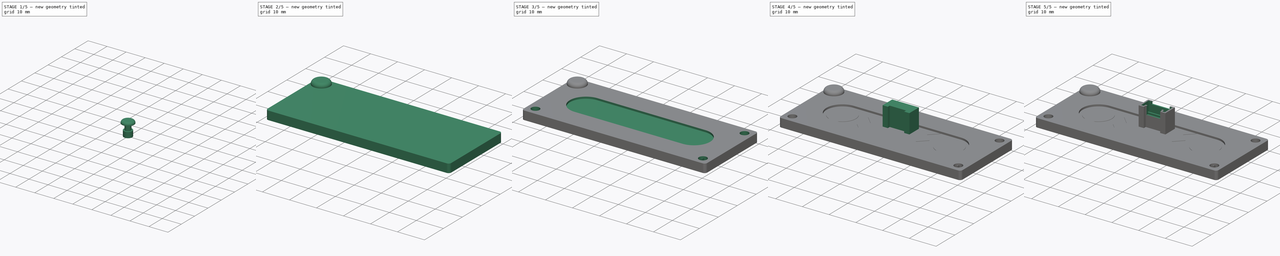
[diagram: build sequence overview — one tinted view per stage of 5, left to right]
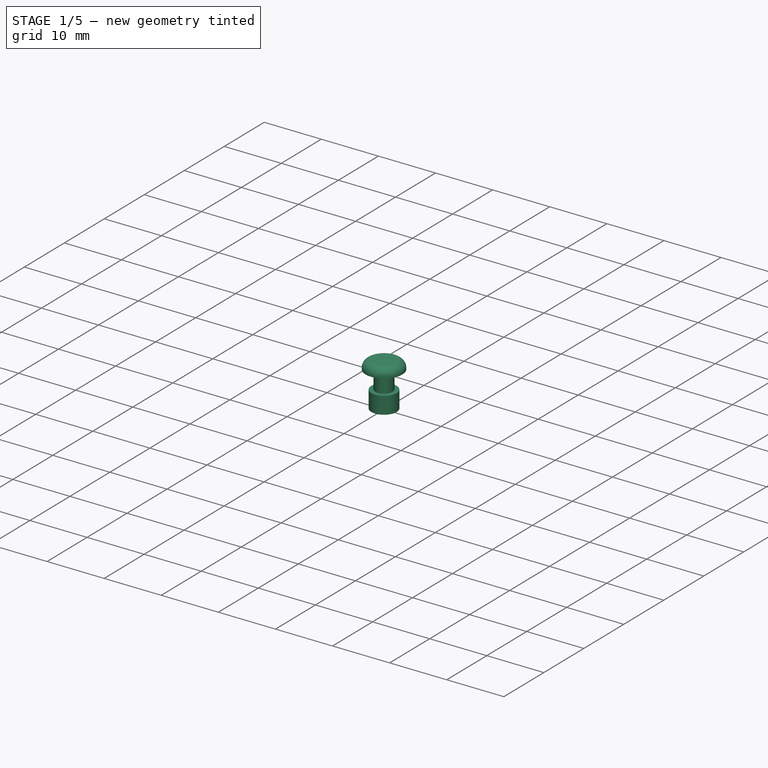
[diagram: stage 1 of 5 — iso view after this stage's code; geometry added in this stage tinted green]
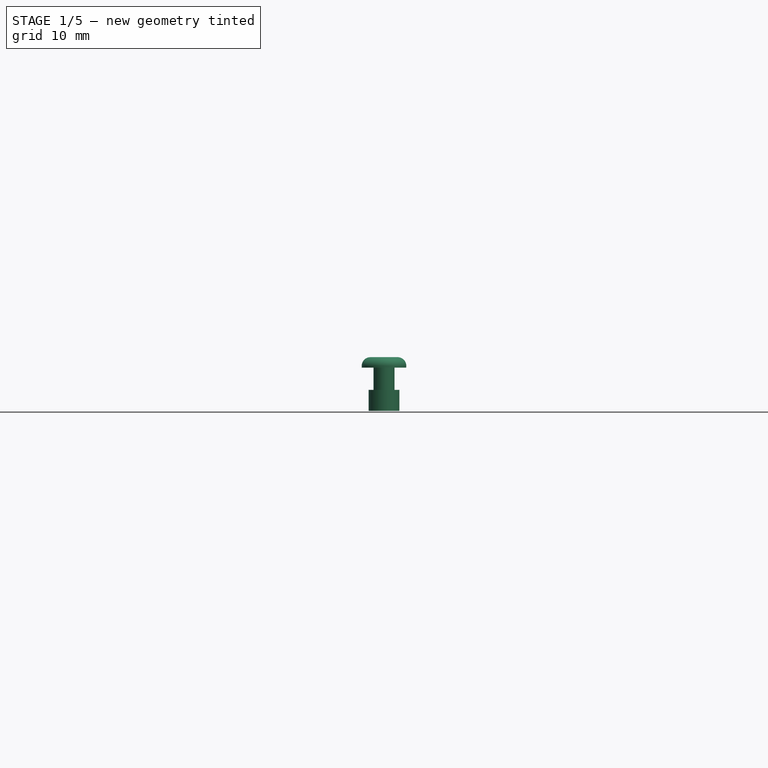
[diagram: stage 1 of 5 — front view after this stage's code; geometry added in this stage tinted green]
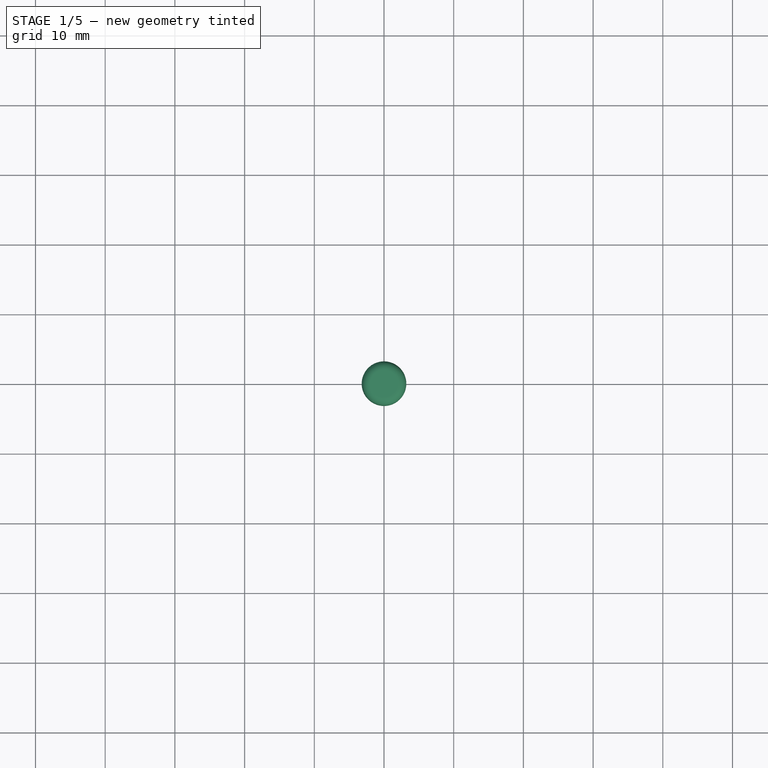
[diagram: stage 1 of 5 — top view after this stage's code; geometry added in this stage tinted green]
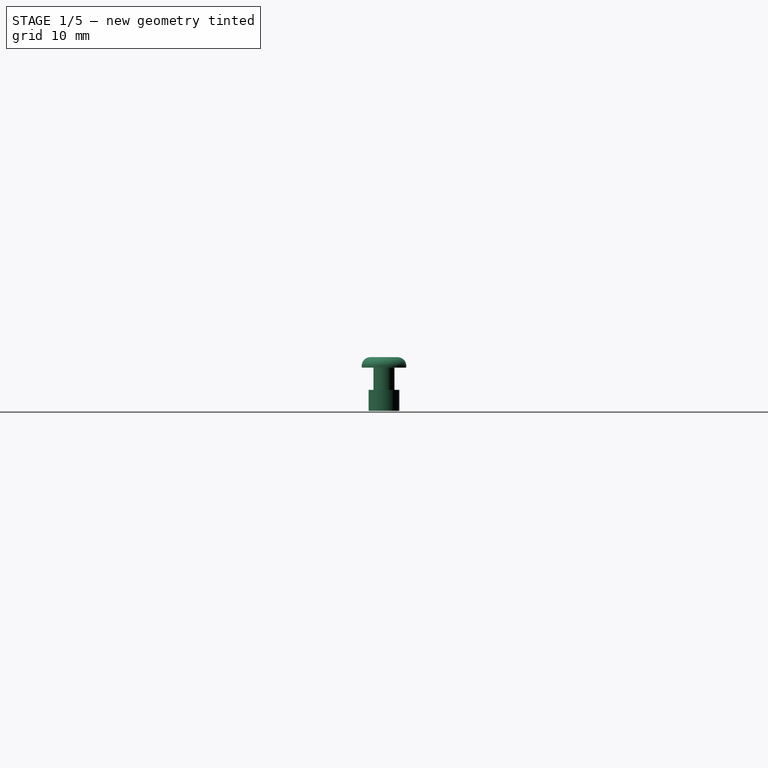
[diagram: stage 1 of 5 — right view after this stage's code; geometry added in this stage tinted green]
FCSTD DOCUMENT  (FreeCAD 0.19R24276 (Git))
Label: Grove_TouchSlideSens
License: All rights reserved
LicenseURL: http://en.wikipedia.org/wiki/All_rights_reserved
objects: Sketcher::SketchObject×17, PartDesign::Pad×10, PartDesign::Body×10, PartDesign::Pocket×7, PartDesign::ShapeBinder×3, PartDesign::FeatureBase×3, PartDesign::Fillet×1, App::Part×1
note: 69 computed .brp shape members not serialized (recipe doc carries the construction recipe); baked Part::Feature solids carry a one-line shape summary decoded from their .brp

FEATURE [PartDesign::Body] Body009  label="ClearCase"
  Group = -> [Sketch017,Pad010,Sketch018,Pocket006,Sketch019,Pocket007,Sketch020,Pocket008]
  Origin = -> Origin011
  Tip = -> Pocket008
FEATURE [Sketcher::SketchObject] Sketch021
  FullyConstrained = true
  MapMode = 5
  Support = -> [XY_Plane012]
  sketch-geometry (1):
    g0: Circle CenterX=0 CenterY=0 CenterZ=0 NormalX=0 NormalY=0 NormalZ=1 AngleXU=0 Radius=1.5
  constraints (2):
    c: Coincident(g0,g-1)
    c: Diameter(g0) = 3
FEATURE [PartDesign::Pad] Pad011
  Direction = (1,1,1)
  Length = 3.2
  Length2 = 100
  Midplane = true
  Profile = -> Sketch021
  Type = 0
FEATURE [Sketcher::SketchObject] Sketch022
  FullyConstrained = true
  MapMode = 5
  Placement = pos=(0,0,1.6) rot=(0,0,1;0rad)
  Support = -> [Pad011]
  sketch-geometry (1):
    g0: Circle CenterX=0 CenterY=0 CenterZ=0 NormalX=0 NormalY=0 NormalZ=1 AngleXU=0 Radius=3.2
  constraints (2):
    c: Coincident(g0,g-1)
    c: Diameter(g0) = 6.4
FEATURE [PartDesign::Pad] Pad012
  BaseFeature = -> Pad011
  Direction = (1,1,1)
  Length = 1.5
  Length2 = 100
  Profile = -> Sketch022
  Type = 0
FEATURE [PartDesign::Fillet] Fillet
  Base = -> Pad012 [Edge3]
  BaseFeature = -> Pad012
  Radius = 1.25
  SupportTransform = false
FEATURE [Sketcher::SketchObject] Sketch023
  FullyConstrained = true
  MapMode = 5
  Placement = pos=(0,0,-1.6) rot=(1,0,0;3.14159rad)
  Support = -> [Fillet]
  sketch-geometry (1):
    g0: Circle CenterX=0 CenterY=0 CenterZ=0 NormalX=0 NormalY=0 NormalZ=1 AngleXU=0 Radius=2.2
  constraints (2):
    c: Coincident(g0,g-1)
    c: Diameter(g0) = 4.4
FEATURE [PartDesign::Pad] Pad013
  BaseFeature = -> Fillet
  Direction = (1,1,1)
  Length = 3
  Length2 = 100
  Profile = -> Sketch023
  Type = 0
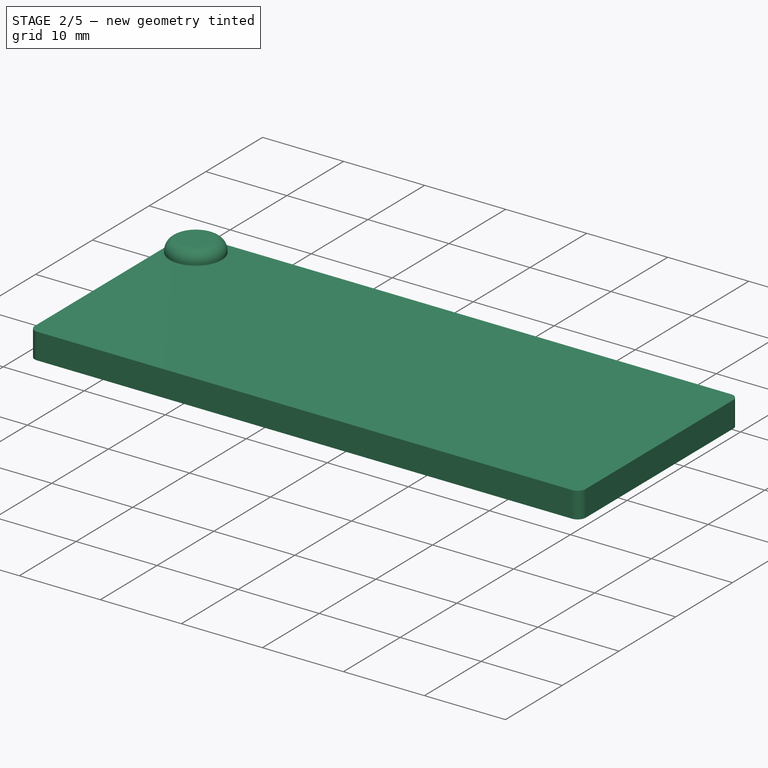
[diagram: stage 2 of 5 — iso view after this stage's code; geometry added in this stage tinted green]
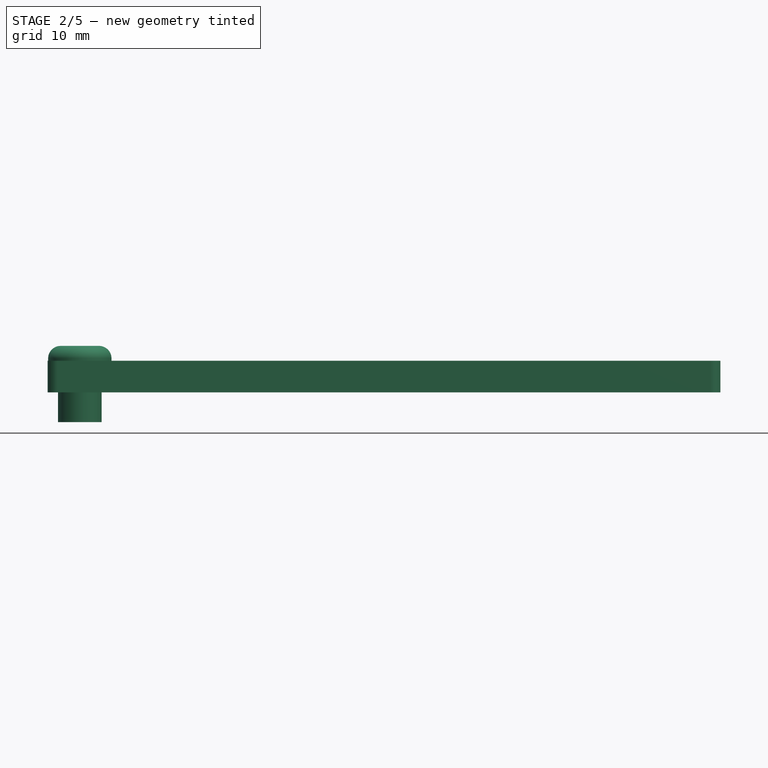
[diagram: stage 2 of 5 — front view after this stage's code; geometry added in this stage tinted green]
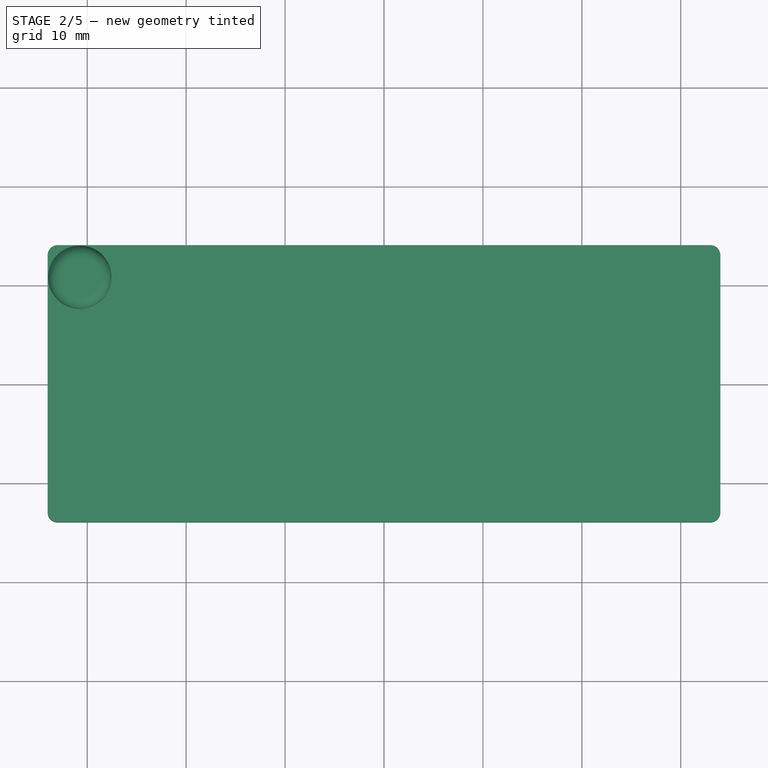
[diagram: stage 2 of 5 — top view after this stage's code; geometry added in this stage tinted green]
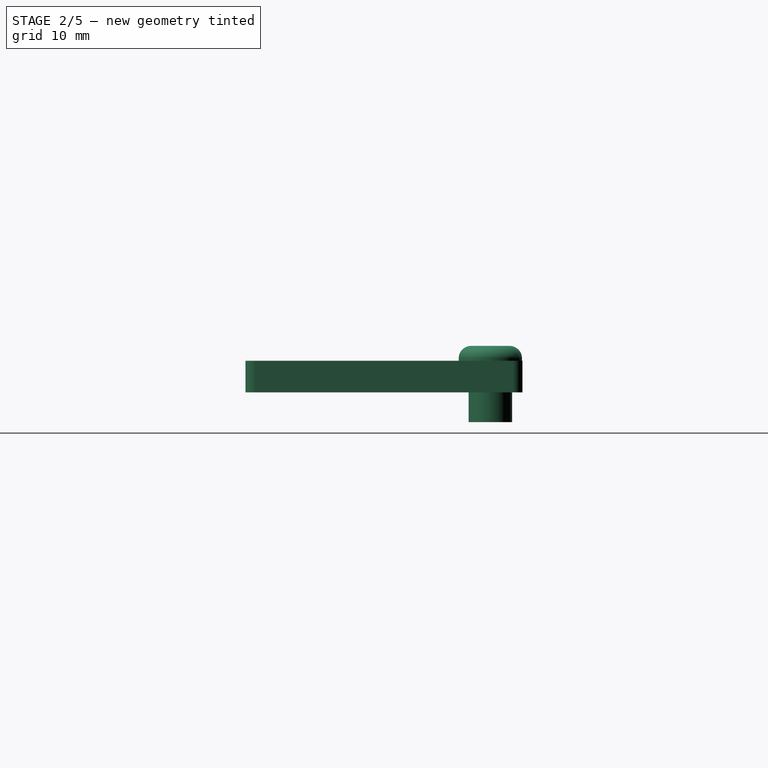
[diagram: stage 2 of 5 — right view after this stage's code; geometry added in this stage tinted green]
FEATURE [PartDesign::Body] Body  label="MainBoard"
  Group = -> [Sketch,Pad,Sketch016,Pocket]
  Origin = -> Origin001
  Tip = -> Pocket
FEATURE [Sketcher::SketchObject] Sketch017
  FullyConstrained = true
  MapMode = 5
  Support = -> [XY_Plane008]
  sketch-geometry (13):
    g0: LineSegment StartX=-33 StartY=14 StartZ=0 EndX=33 EndY=14 EndZ=0
    g1: LineSegment StartX=34 StartY=13 StartZ=0 EndX=34 EndY=-13 EndZ=0
    g2: LineSegment StartX=33 StartY=-14 StartZ=0 EndX=-33 EndY=-14 EndZ=0
    g3: LineSegment StartX=-34 StartY=-13 StartZ=0 EndX=-34 EndY=13 EndZ=0
    g4: LineSegment StartX=0 StartY=0 StartZ=0 EndX=0 EndY=14 EndZ=0
    g5: LineSegment StartX=0 StartY=0 StartZ=0 EndX=34 EndY=0 EndZ=0
    g6: ArcOfCircle CenterX=-33 CenterY=13 CenterZ=0 NormalX=0 NormalY=0 NormalZ=1 AngleXU=0 Radius=1 StartAngle=1.5708 EndAngle=3.14159
    g7: ArcOfCircle CenterX=33 CenterY=13 CenterZ=0 NormalX=0 NormalY=0 NormalZ=1 AngleXU=0 Radius=1 StartAngle=5.7653e-12 EndAngle=1.5708
    g8: ArcOfCircle CenterX=33 CenterY=-13 CenterZ=0 NormalX=0 NormalY=0 NormalZ=1 AngleXU=0 Radius=1 StartAngle=4.71239 EndAngle=6.28319
    g9: ArcOfCircle CenterX=-33 CenterY=-13 CenterZ=0 NormalX=0 NormalY=0 NormalZ=1 AngleXU=0 Radius=1 StartAngle=3.14159 EndAngle=4.71239
    g10: LineSegment StartX=-33 StartY=13 StartZ=0 EndX=33 EndY=13 EndZ=0
    g11: LineSegment StartX=33 StartY=13 StartZ=0 EndX=33 EndY=-13 EndZ=0
    g12: LineSegment StartX=-33 StartY=-13 StartZ=0 EndX=-33 EndY=13 EndZ=0
  constraints (30):
    c: Horizontal(g0)
    c: Horizontal(g2)
    c: Vertical(g1)
    c: Vertical(g3)
    c: Coincident(g4,g-1)
    c: PointOnObject(g4,g-2)
    c: Coincident(g5,g-1)
    c: PointOnObject(g5,g-1)
    c: Tangent(g3,g6) = 1.5708
    c: Tangent(g0,g6) = 1.5708
    c: Tangent(g0,g7) = 1.5708
    c: Tangent(g1,g7) = 1.5708
    c: Tangent(g1,g8) = 1.5708
    c: Tangent(g2,g8) = 1.5708
    c: Tangent(g2,g9) = 1.5708
    c: Tangent(g3,g9) = 1.5708
    c: Coincident(g10,g6)
    c: Coincident(g10,g7)
    c: Horizontal(g10)
    c: Coincident(g11,g7)
    c: Coincident(g11,g8)
    c: Vertical(g11)
    c: Coincident(g12,g9)
    c: Coincident(g12,g6)
    c: Vertical(g12)
    c: Radius(g6) = 1
    c: Symmetric(g0,g0,g4)
    c: Symmetric(g1,g1,g5)
    c: DistanceX(g3,g1) = 68
    c: DistanceY(g2,g0) = 28
FEATURE [PartDesign::Pad] Pad010
  Direction = (1,1,1)
  Length = 3.2
  Length2 = 100
  Midplane = true
  Profile = -> Sketch017
  Type = 0
FEATURE [PartDesign::Body] Body010  label="GroveSplitRivet"
  Group = -> [Sketch021,Pad011,Sketch022,Pad012,Fillet,Sketch023,Pad013]
  Origin = -> Origin012
  Placement = pos=(-30.75,10.75,0) rot=(0,0,1;0rad)
  Tip = -> Pad013
FEATURE [PartDesign::FeatureBase] Clone
  BaseFeature = -> Body010
  Placement = pos=(-30.75,10.75,0) rot=(0,0,1;0rad)
FEATURE [PartDesign::Body] Body011  label="GroveSplitRivet001"
  BaseFeature = -> Body010
  Group = -> [Clone]
  Origin = -> Origin013
  Placement = pos=(61.5,0,0) rot=(0,0,1;0rad)
  Tip = -> Clone
FEATURE [PartDesign::FeatureBase] Clone001
  BaseFeature = -> Body010
  Placement = pos=(-30.75,10.75,0) rot=(0,0,1;0rad)
FEATURE [PartDesign::Body] Body012  label="GroveSplitRivet002"
  BaseFeature = -> Body010
  Group = -> [Clone001]
  Origin = -> Origin014
  Placement = pos=(0,-21.5,0) rot=(0,0,1;0rad)
  Tip = -> Clone001
FEATURE [PartDesign::FeatureBase] Clone002
  BaseFeature = -> Body010
  Placement = pos=(-30.75,10.75,0) rot=(0,0,1;0rad)
FEATURE [PartDesign::Body] Body013  label="GroveSplitRivet003"
  BaseFeature = -> Body010
  Group = -> [Clone002]
  Origin = -> Origin015
  Placement = pos=(61.5,-21.5,0) rot=(0,0,1;0rad)
  Tip = -> Clone002
FEATURE [App::Part] Part  label="GroveSlideSens"
  Group = -> [Body,Body005,Body006,Body007,Body008,Body009,Body010,Body011,Body012,Body013]
  Origin = -> Origin
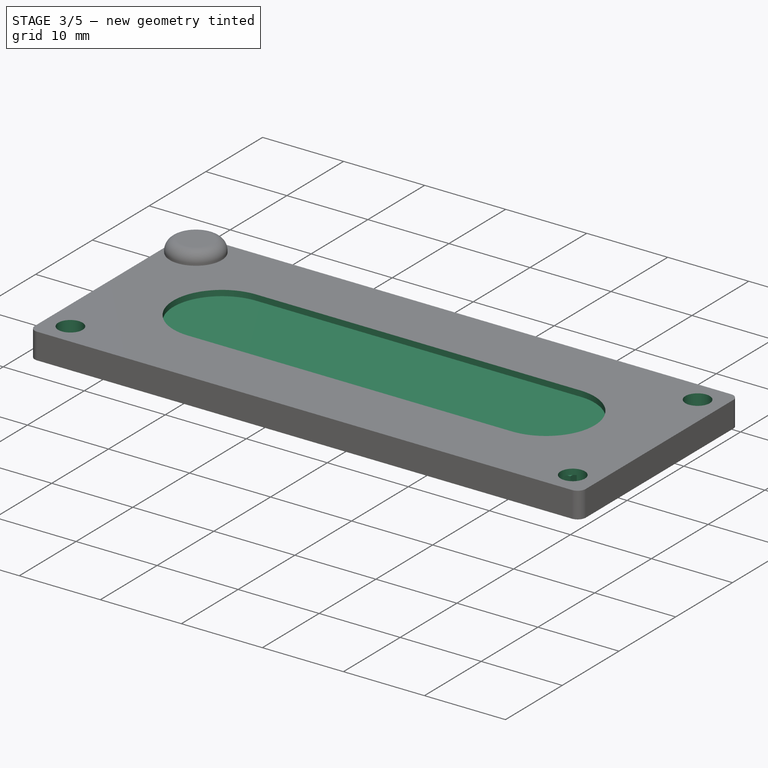
[diagram: stage 3 of 5 — iso view after this stage's code; geometry added in this stage tinted green]
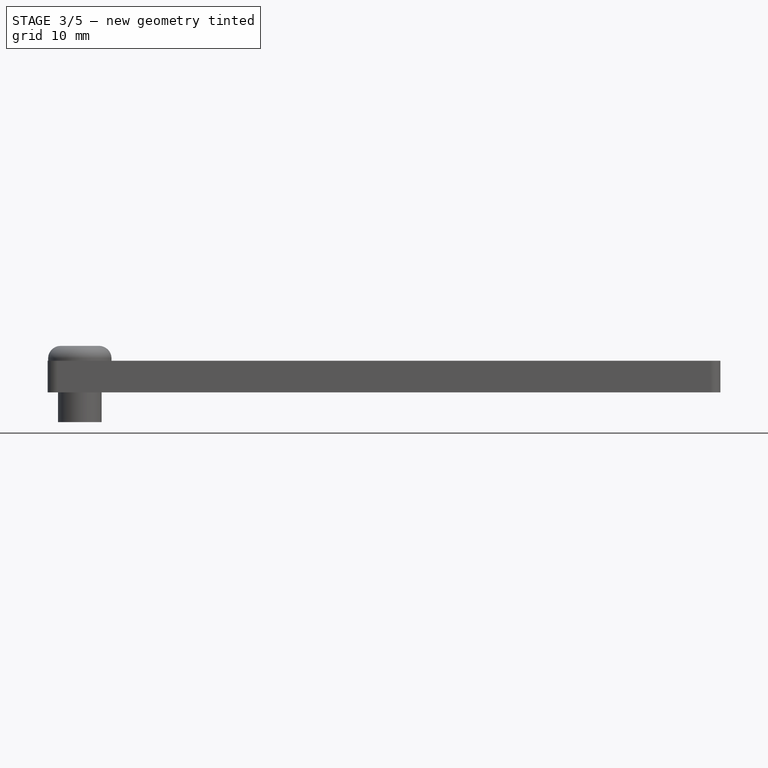
[diagram: stage 3 of 5 — front view after this stage's code; geometry added in this stage tinted green]
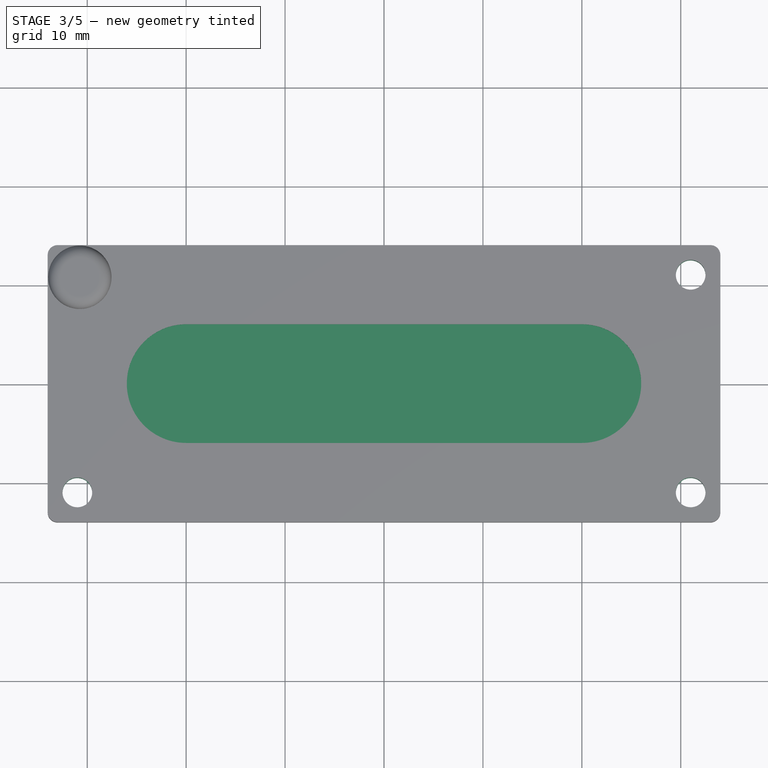
[diagram: stage 3 of 5 — top view after this stage's code; geometry added in this stage tinted green]
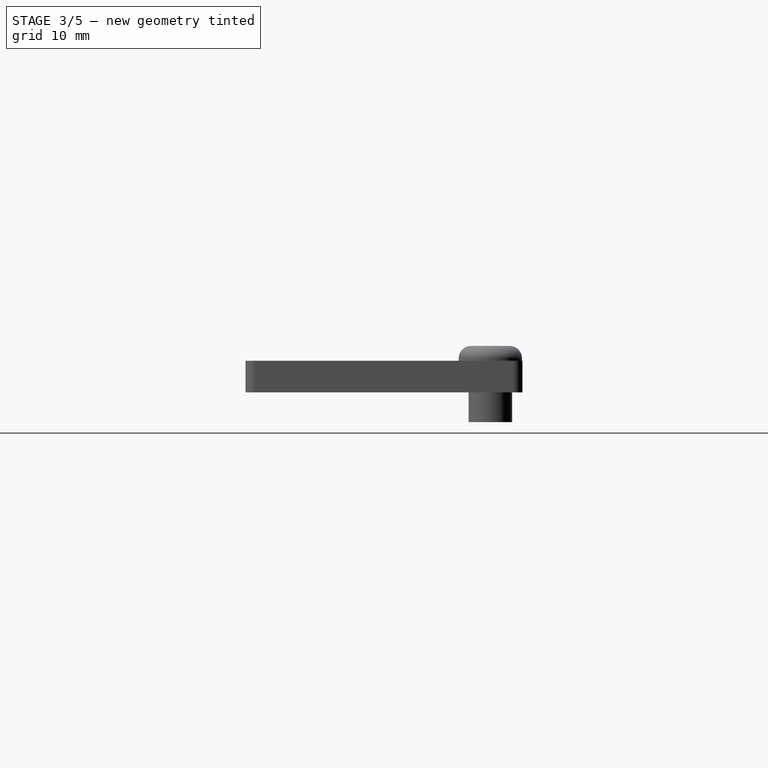
[diagram: stage 3 of 5 — right view after this stage's code; geometry added in this stage tinted green]
FEATURE [Sketcher::SketchObject] Sketch
  FullyConstrained = true
  MapMode = 5
  Support = -> [XY_Plane001]
  sketch-geometry (26):
    g0: LineSegment StartX=0 StartY=0 StartZ=0 EndX=0 EndY=10 EndZ=0
    g1: LineSegment StartX=-18 StartY=10 StartZ=0 EndX=18 EndY=10 EndZ=0
    g2: LineSegment StartX=30 StartY=10 StartZ=0 EndX=30 EndY=2 EndZ=0
    g3: LineSegment StartX=30 StartY=-2 StartZ=0 EndX=30 EndY=-10 EndZ=0
    g4: LineSegment StartX=22 StartY=10 StartZ=0 EndX=30 EndY=10 EndZ=0
    g5: LineSegment StartX=22 StartY=-10 StartZ=0 EndX=30 EndY=-10 EndZ=0
    g6: LineSegment StartX=18 StartY=-10 StartZ=0 EndX=-18 EndY=-10 EndZ=0
    g7: LineSegment StartX=-22 StartY=-10 StartZ=0 EndX=-30 EndY=-10 EndZ=0
    g8: LineSegment StartX=-30 StartY=-10 StartZ=0 EndX=-30 EndY=-2 EndZ=0
    g9: LineSegment StartX=-30 StartY=2 StartZ=0 EndX=-30 EndY=10 EndZ=0
    g10: LineSegment StartX=-30 StartY=10 StartZ=0 EndX=-22 EndY=10 EndZ=0
    g11: ArcOfCircle CenterX=-30 CenterY=0 CenterZ=0 NormalX=0 NormalY=0 NormalZ=1 AngleXU=0 Radius=2 StartAngle=4.71239 EndAngle=7.85398
    g12: ArcOfCircle CenterX=30 CenterY=0 CenterZ=0 NormalX=0 NormalY=0 NormalZ=1 AngleXU=0 Radius=2 StartAngle=1.5708 EndAngle=4.71239
    g13: LineSegment StartX=30 StartY=2 StartZ=0 EndX=30 EndY=-2 EndZ=0
    g14: LineSegment StartX=-30 StartY=2 StartZ=0 EndX=-30 EndY=-2 EndZ=0
    g15: LineSegment StartX=-22 StartY=10 StartZ=0 EndX=-18 EndY=10 EndZ=0
    g16: LineSegment StartX=-22 StartY=-10 StartZ=0 EndX=-18 EndY=-10 EndZ=0
    g17: LineSegment StartX=18 StartY=-10 StartZ=0 EndX=22 EndY=-10 EndZ=0
    g18: LineSegment StartX=18 StartY=10 StartZ=0 EndX=22 EndY=10 EndZ=0
    g19: ArcOfCircle CenterX=-20 CenterY=-10 CenterZ=0 NormalX=0 NormalY=0 NormalZ=1 AngleXU=0 Radius=2 StartAngle=3.14159 EndAngle=6.28319
    g20: ArcOfCircle CenterX=20 CenterY=-10 CenterZ=0 NormalX=0 NormalY=0 NormalZ=1 AngleXU=0 Radius=2 StartAngle=3.14159 EndAngle=6.28319
    g21: ArcOfCircle CenterX=-20 CenterY=10 CenterZ=0 NormalX=0 NormalY=0 NormalZ=1 AngleXU=0 Radius=2 StartAngle=3.4e-15 EndAngle=3.14159
    g22: LineSegment StartX=-20 StartY=-10 StartZ=0 EndX=-20 EndY=10 EndZ=0
    g23: LineSegment StartX=-30 StartY=2 StartZ=0 EndX=30 EndY=2 EndZ=0
    g24: ArcOfCircle CenterX=20 CenterY=10 CenterZ=0 NormalX=0 NormalY=0 NormalZ=1 AngleXU=0 Radius=2 StartAngle=6e-16 EndAngle=3.14159
    g25: LineSegment StartX=20 StartY=-10 StartZ=0 EndX=20 EndY=10 EndZ=0
  constraints (75):
    c: Coincident(g0,g-1)
    c: PointOnObject(g0,g-2)
    c: Horizontal(g1)
    c: Vertical(g2)
    c: Vertical(g3)
    c: Horizontal(g4)
    c: Coincident(g5,g3)
    c: Horizontal(g6)
    c: Horizontal(g7)
    c: Coincident(g8,g7)
    c: Vertical(g8)
    c: Coincident(g10,g9)
    c: Horizontal(g10)
    c: Horizontal(g5)
    c: Vertical(g9)
    c: PointOnObject(g11,g-1)
    c: Coincident(g11,g9)
    c: Coincident(g11,g8)
    c: Perpendicular(g11,g9)
    c: Perpendicular(g12,g2)
    c: Coincident(g14,g9)
    c: Coincident(g14,g8)
    c: Vertical(g14)
    c: Coincident(g15,g10)
    c: Coincident(g15,g1)
    c: Coincident(g16,g7)
    c: Coincident(g16,g6)
    c: Coincident(g17,g6)
    c: Coincident(g17,g5)
    c: Horizontal(g17)
    c: Coincident(g18,g1)
    c: Coincident(g18,g4)
    c: Horizontal(g18)
    c: Coincident(g2,g4)
    c: Equal(g15,g18)
    c: Horizontal(g15)
    c: Horizontal(g16)
    c: Equal(g16,g17)
    c: Equal(g17,g18)
    c: Equal(g14,g13)
    c: Equal(g1,g6)
    c: Symmetric(g1,g1,g0)
    c: Coincident(g13,g2)
    c: Coincident(g12,g2)
    c: Coincident(g3,g12)
    c: Vertical(g13)
    c: Perpendicular(g12,g3)
    c: PointOnObject(g19,g16)
    c: Coincident(g19,g7)
    c: Coincident(g19,g6)
    c: PointOnObject(g20,g17)
    c: Coincident(g20,g6)
    c: Coincident(g20,g5)
    c: PointOnObject(g21,g15)
    c: Coincident(g21,g10)
    c: Coincident(g21,g1)
    c: Equal(g3,g2)
    c: PointOnObject(g12,g-1)
    c: Coincident(g22,g19)
    c: Coincident(g22,g21)
    c: Coincident(g23,g9)
    c: Coincident(g23,g2)
    c: Horizontal(g23)
    c: Radius(g11) = 2
    c: PointOnObject(g24,g18)
    c: Coincident(g24,g1)
    c: Coincident(g24,g4)
    c: Coincident(g25,g20)
    c: Coincident(g25,g24)
    c: Vertical(g22)
    c: Equal(g10,g4)
    c: Radius(g21) = 2
    c: DistanceX(g7,g19) = 10
    c: DistanceX(g9,g2) = 60
    c: DistanceY(g7,g9) = 20
FEATURE [PartDesign::Pad] Pad
  Direction = (1,1,1)
  Length = 1.6
  Length2 = 100
  Midplane = true
  Profile = -> Sketch
  Type = 0
FEATURE [PartDesign::Body] Body008  label="ButtonSlider"
  Group = -> [CopyPad004,Sketch015,Pad009]
  Origin = -> Origin010
  Tip = -> Pad009
FEATURE [Sketcher::SketchObject] Sketch016
  FullyConstrained = true
  MapMode = 5
  Support = -> [XY_Plane008]
  sketch-geometry (8):
    g0: Circle CenterX=-20 CenterY=10 CenterZ=0 NormalX=0 NormalY=0 NormalZ=1 AngleXU=0 Radius=1.15
    g1: Circle CenterX=-20 CenterY=-10 CenterZ=0 NormalX=0 NormalY=0 NormalZ=1 AngleXU=0 Radius=1.15
    g2: Circle CenterX=20 CenterY=10 CenterZ=0 NormalX=0 NormalY=0 NormalZ=1 AngleXU=0 Radius=1.15
    g3: Circle CenterX=20 CenterY=-10 CenterZ=0 NormalX=0 NormalY=0 NormalZ=1 AngleXU=0 Radius=1.15
    g4: LineSegment StartX=0 StartY=0 StartZ=0 EndX=20 EndY=0 EndZ=0
    g5: LineSegment StartX=20 StartY=10 StartZ=0 EndX=20 EndY=-10 EndZ=0
    g6: LineSegment StartX=0 StartY=0 StartZ=0 EndX=-20 EndY=0 EndZ=0
    g7: LineSegment StartX=-20 StartY=10 StartZ=0 EndX=-20 EndY=-10 EndZ=0
  constraints (20):
    c: Coincident(g4,g-1)
    c: PointOnObject(g4,g-1)
    c: Coincident(g5,g2)
    c: Coincident(g5,g3)
    c: Vertical(g5)
    c: Coincident(g6,g-1)
    c: PointOnObject(g6,g-1)
    c: Coincident(g7,g0)
    c: Coincident(g7,g1)
    c: Vertical(g7)
    c: Symmetric(g0,g1,g6)
    c: Symmetric(g2,g3,g4)
    c: Equal(g7,g5)
    c: Equal(g4,g6)
    c: Distance(g5) = 20
    c: Distance(g6) = 20
    c: Equal(g0,g2)
    c: Equal(g2,g3)
    c: Equal(g3,g1)
    c: Diameter(g0) = 2.3
FEATURE [PartDesign::Pocket] Pocket
  BaseFeature = -> Pad
  Length = 5
  Length2 = 100
  Midplane = true
  Profile = -> Sketch016
  Type = 1
FEATURE [Sketcher::SketchObject] Sketch018
  FullyConstrained = true
  MapMode = 5
  Support = -> [XY_Plane008]
  sketch-geometry (27):
    g0: LineSegment StartX=-30.5 StartY=1.5 StartZ=0 EndX=-30.5 EndY=10.5 EndZ=0
    g1: LineSegment StartX=-30.5 StartY=10.5 StartZ=0 EndX=-22.25 EndY=10.5 EndZ=0
    g2: LineSegment StartX=-17.75 StartY=10.5 StartZ=0 EndX=17.75 EndY=10.5 EndZ=0
    g3: LineSegment StartX=22.25 StartY=10.5 StartZ=0 EndX=30.5 EndY=10.5 EndZ=0
    g4: LineSegment StartX=30.5 StartY=10.5 StartZ=0 EndX=30.5 EndY=1.5 EndZ=0
    g5: LineSegment StartX=30.5 StartY=-1.5 StartZ=0 EndX=30.5 EndY=-10.5 EndZ=0
    g6: LineSegment StartX=30.5 StartY=-10.5 StartZ=0 EndX=22.25 EndY=-10.5 EndZ=0
    g7: LineSegment StartX=17.75 StartY=-10.5 StartZ=0 EndX=-17.75 EndY=-10.5 EndZ=0
    g8: LineSegment StartX=-22.25 StartY=-10.5 StartZ=0 EndX=-30.5 EndY=-10.5 EndZ=0
    g9: LineSegment StartX=-30.5 StartY=-10.5 StartZ=0 EndX=-30.5 EndY=-1.5 EndZ=0
    g10: LineSegment StartX=-22.25 StartY=10.5 StartZ=0 EndX=-17.75 EndY=10.5 EndZ=0
    g11: LineSegment StartX=17.75 StartY=10.5 StartZ=0 EndX=22.25 EndY=10.5 EndZ=0
    g12: LineSegment StartX=30.5 StartY=1.5 StartZ=0 EndX=30.5 EndY=-1.5 EndZ=0
    g13: LineSegment StartX=17.75 StartY=-10.5 StartZ=0 EndX=22.25 EndY=-10.5 EndZ=0
    g14: LineSegment StartX=-22.25 StartY=-10.5 StartZ=0 EndX=-17.75 EndY=-10.5 EndZ=0
    g15: LineSegment StartX=-22.25 StartY=-10.5 StartZ=0 EndX=-22.25 EndY=10.5 EndZ=0
    g16: LineSegment StartX=22.25 StartY=10.5 StartZ=0 EndX=22.25 EndY=-10.5 EndZ=0
    g17: LineSegment StartX=30.5 StartY=1.5 StartZ=0 EndX=-30.5 EndY=1.5 EndZ=0
    g18: LineSegment StartX=-30.5 StartY=-1.5 StartZ=0 EndX=-30.5 EndY=1.5 EndZ=0
    g19: LineSegment StartX=-30.5 StartY=-1.5 StartZ=0 EndX=30.5 EndY=-1.5 EndZ=0
    g20: LineSegment StartX=0 StartY=0 StartZ=0 EndX=0 EndY=10.5 EndZ=0
    g21: ArcOfCircle CenterX=-30.5 CenterY=0 CenterZ=0 NormalX=0 NormalY=0 NormalZ=1 AngleXU=0 Radius=1.5 StartAngle=4.71239 EndAngle=7.85398
    g22: ArcOfCircle CenterX=30.5 CenterY=1e-16 CenterZ=0 NormalX=0 NormalY=0 NormalZ=1 AngleXU=0 Radius=1.5 StartAngle=1.5708 EndAngle=4.71239
    g23: ArcOfCircle CenterX=-20 CenterY=10.5 CenterZ=0 NormalX=0 NormalY=0 NormalZ=1 AngleXU=0 Radius=2.25 StartAngle=1.8e-15 EndAngle=3.14159
    g24: ArcOfCircle CenterX=20 CenterY=10.5 CenterZ=0 NormalX=0 NormalY=0 NormalZ=1 AngleXU=0 Radius=2.25 StartAngle=8e-16 EndAngle=3.14159
    g25: ArcOfCircle CenterX=-20 CenterY=-10.5 CenterZ=0 NormalX=0 NormalY=0 NormalZ=1 AngleXU=0 Radius=2.25 StartAngle=3.14159 EndAngle=6.28319
    g26: ArcOfCircle CenterX=20 CenterY=-10.5 CenterZ=0 NormalX=0 NormalY=0 NormalZ=1 AngleXU=0 Radius=2.25 StartAngle=3.14159 EndAngle=6.28319
  constraints (76):
    c: Vertical(g0)
    c: Coincident(g1,g0)
    c: Horizontal(g1)
    c: Horizontal(g2)
    c: Horizontal(g3)
    c: Coincident(g4,g3)
    c: Vertical(g4)
    c: Coincident(g6,g5)
    c: Horizontal(g6)
    c: Horizontal(g7)
    c: Horizontal(g8)
    c: Coincident(g9,g8)
    c: Vertical(g9)
    c: Vertical(g5)
    c: Coincident(g10,g1)
    c: Coincident(g10,g2)
    c: Coincident(g11,g2)
    c: Coincident(g11,g3)
    c: Horizontal(g11)
    c: Coincident(g12,g4)
    c: Coincident(g12,g5)
    c: Coincident(g13,g7)
    c: Coincident(g13,g6)
    c: Horizontal(g13)
    c: Coincident(g14,g8)
    c: Coincident(g14,g7)
    c: Horizontal(g14)
    c: Coincident(g15,g1)
    c: Vertical(g15)
    c: Coincident(g16,g3)
    c: Coincident(g16,g6)
    c: Coincident(g17,g4)
    c: Coincident(g17,g0)
    c: Horizontal(g17)
    c: Coincident(g18,g9)
    c: Coincident(g18,g0)
    c: Coincident(g19,g9)
    c: Coincident(g19,g5)
    c: Horizontal(g19)
    c: Vertical(g18)
    c: Coincident(g20,g-1)
    c: PointOnObject(g20,g-2)
    c: Vertical(g12)
    c: Horizontal(g10)
    c: Equal(g10,g11)
    c: Vertical(g16)
    c: Equal(g14,g13)
    c: Equal(g7,g2)
    c: Equal(g0,g9)
    c: Equal(g1,g3)
    c: Symmetric(g2,g2,g20)
    c: Coincident(g8,g15)
    c: PointOnObject(g21,g18)
    c: Coincident(g21,g0)
    c: Coincident(g21,g9)
    c: PointOnObject(g21,g-1)
    c: PointOnObject(g22,g12)
    c: Coincident(g22,g4)
    c: Coincident(g22,g5)
    c: Radius(g21) = 1.5
    c: PointOnObject(g23,g10)
    c: Coincident(g23,g1)
    c: Coincident(g23,g2)
    c: PointOnObject(g24,g11)
    c: Coincident(g24,g2)
    c: Coincident(g24,g3)
    c: Diameter(g23) = 4.5
    c: DistanceX(g23,g-1) = 20
    c: DistanceY(g8,g0) = 21
    c: DistanceX(g8,g5) = 61
    c: PointOnObject(g25,g14)
    c: Coincident(g25,g8)
    c: Coincident(g25,g7)
    c: PointOnObject(g26,g13)
    c: Coincident(g26,g7)
    c: Coincident(g26,g6)
FEATURE [PartDesign::Pocket] Pocket006
  BaseFeature = -> Pad010
  Length = 1.8
  Length2 = 100
  Midplane = true
  Profile = -> Sketch018
  Type = 0
FEATURE [Sketcher::SketchObject] Sketch019
  FullyConstrained = true
  MapMode = 5
  Support = -> [XY_Plane008]
  sketch-geometry (6):
    g0: ArcOfCircle CenterX=-20 CenterY=3e-16 CenterZ=0 NormalX=0 NormalY=0 NormalZ=1 AngleXU=0 Radius=6 StartAngle=1.5708 EndAngle=4.71239
    g1: ArcOfCircle CenterX=20 CenterY=0 CenterZ=0 NormalX=0 NormalY=0 NormalZ=1 AngleXU=0 Radius=6 StartAngle=4.71239 EndAngle=7.85398
    g2: LineSegment StartX=-20 StartY=-6 StartZ=0 EndX=20 EndY=-6 EndZ=0
    g3: LineSegment StartX=-20 StartY=6 StartZ=0 EndX=20 EndY=6 EndZ=0
    g4: LineSegment StartX=0 StartY=0 StartZ=0 EndX=20 EndY=0 EndZ=0
    g5: LineSegment StartX=0 StartY=0 StartZ=0 EndX=0 EndY=6 EndZ=0
  constraints (14):
    c: Tangent(g0,g3) = 1.5708
    c: Tangent(g0,g2) = -1.5708
    c: Tangent(g2,g1) = -1.5708
    c: Tangent(g3,g1) = 1.5708
    c: Horizontal(g2)
    c: Equal(g0,g1)
    c: Coincident(g4,g-1)
    c: PointOnObject(g4,g-1)
    c: Coincident(g5,g-1)
    c: PointOnObject(g5,g-2)
    c: Symmetric(g0,g1,g5)
    c: Coincident(g1,g4)
    c: Diameter(g1) = 12
    c: DistanceX(g0,g1) = 40
FEATURE [PartDesign::Pocket] Pocket007
  BaseFeature = -> Pocket006
  Length = 5
  Length2 = 100
  Profile = -> Sketch019
  Reversed = true
  Type = 0
FEATURE [Sketcher::SketchObject] Sketch020
  FullyConstrained = true
  MapMode = 5
  Support = -> [XY_Plane008]
  sketch-geometry (10):
    g0: LineSegment StartX=-31 StartY=11 StartZ=0 EndX=31 EndY=11 EndZ=0
    g1: LineSegment StartX=31 StartY=11 StartZ=0 EndX=31 EndY=-11 EndZ=0
    g2: LineSegment StartX=31 StartY=-11 StartZ=0 EndX=-31 EndY=-11 EndZ=0
    g3: LineSegment StartX=-31 StartY=-11 StartZ=0 EndX=-31 EndY=11 EndZ=0
    g4: LineSegment StartX=0 StartY=0 StartZ=0 EndX=0 EndY=11 EndZ=0
    g5: LineSegment StartX=0 StartY=0 StartZ=0 EndX=31 EndY=0 EndZ=0
    g6: Circle CenterX=-31 CenterY=11 CenterZ=0 NormalX=0 NormalY=0 NormalZ=1 AngleXU=0 Radius=1.5
    g7: Circle CenterX=31 CenterY=11 CenterZ=0 NormalX=0 NormalY=0 NormalZ=1 AngleXU=0 Radius=1.5
    g8: Circle CenterX=31 CenterY=-11 CenterZ=0 NormalX=0 NormalY=0 NormalZ=1 AngleXU=0 Radius=1.5
    g9: Circle CenterX=-31 CenterY=-11 CenterZ=0 NormalX=0 NormalY=0 NormalZ=1 AngleXU=0 Radius=1.5
  constraints (24):
    c: Coincident(g0,g1)
    c: Coincident(g1,g2)
    c: Coincident(g2,g3)
    c: Coincident(g3,g0)
    c: Horizontal(g0)
    c: Horizontal(g2)
    c: Vertical(g1)
    c: Vertical(g3)
    c: Coincident(g4,g-1)
    c: PointOnObject(g4,g-2)
    c: Coincident(g5,g-1)
    c: PointOnObject(g5,g-1)
    c: Symmetric(g0,g0,g4)
    c: Symmetric(g0,g1,g5)
    c: Coincident(g6,g0)
    c: Coincident(g7,g0)
    c: Coincident(g8,g1)
    c: Coincident(g9,g2)
    c: Equal(g6,g9)
    c: Equal(g9,g8)
    c: Equal(g8,g7)
    c: Diameter(g6) = 3
    c: DistanceX(g6,g7) = 62
    c: DistanceY(g8,g7) = 22
FEATURE [PartDesign::Pocket] Pocket008
  BaseFeature = -> Pocket007
  Length = 5
  Length2 = 100
  Midplane = true
  Profile = -> Sketch020
  Type = 1
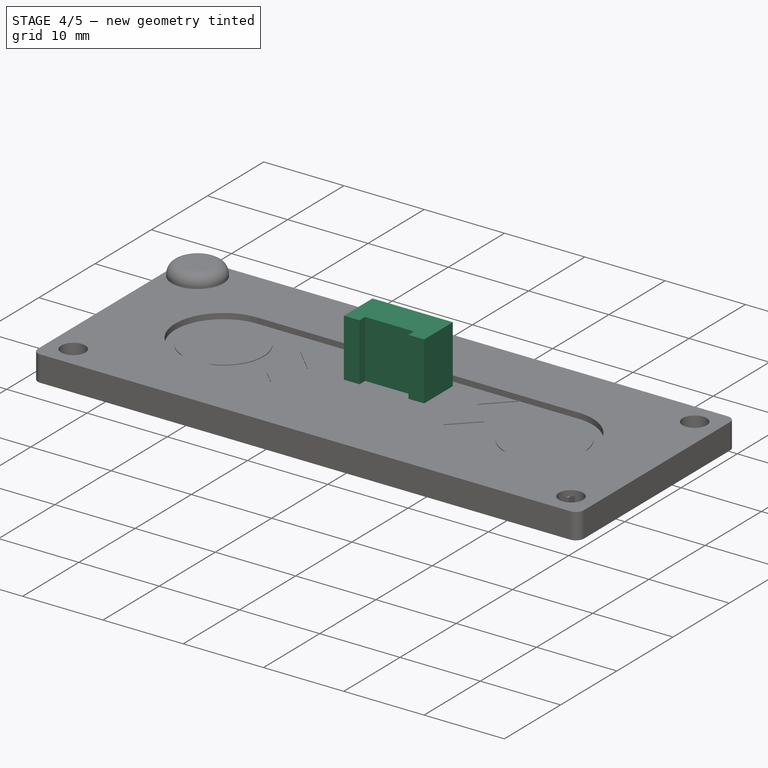
[diagram: stage 4 of 5 — iso view after this stage's code; geometry added in this stage tinted green]
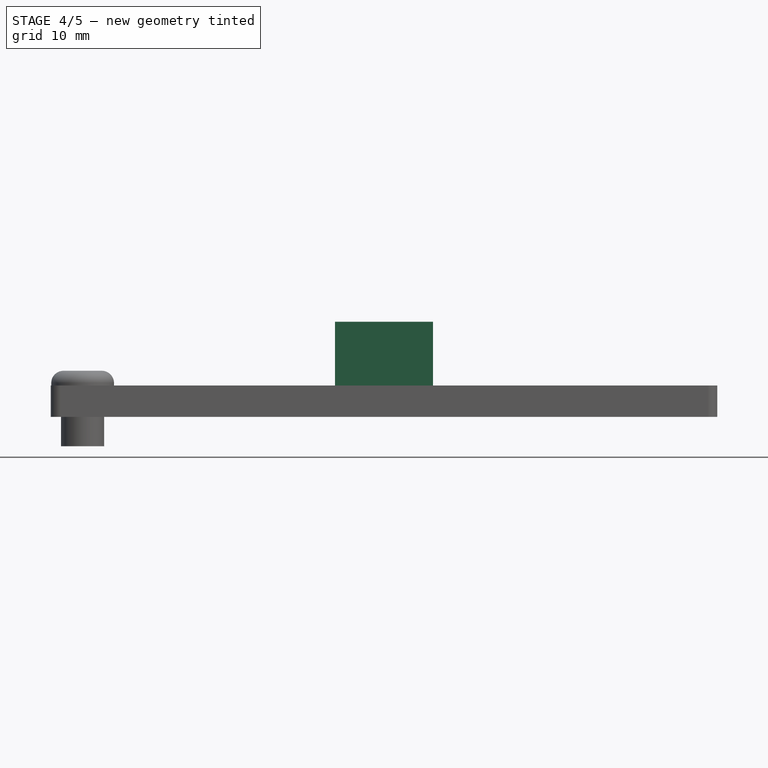
[diagram: stage 4 of 5 — front view after this stage's code; geometry added in this stage tinted green]
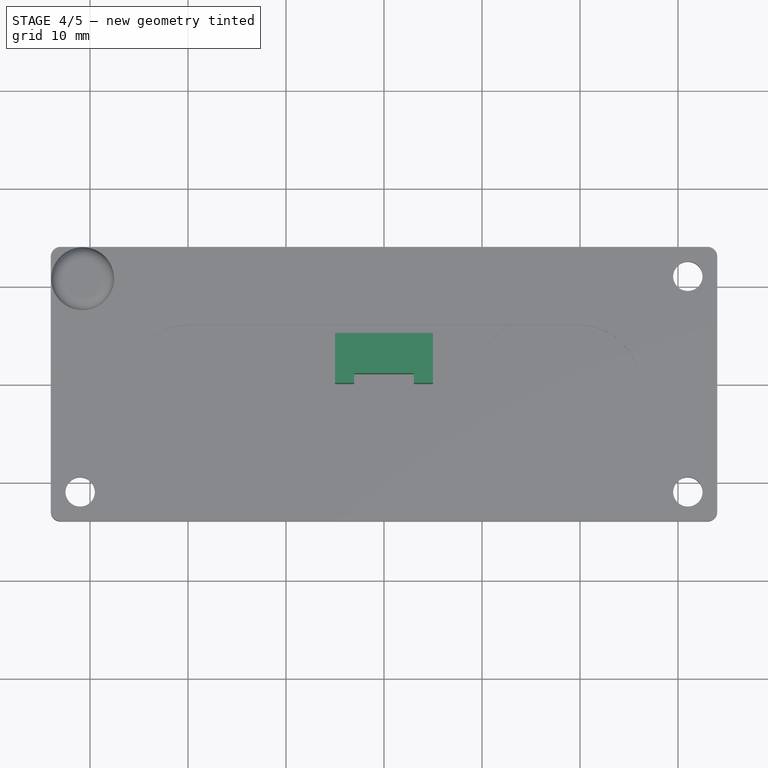
[diagram: stage 4 of 5 — top view after this stage's code; geometry added in this stage tinted green]
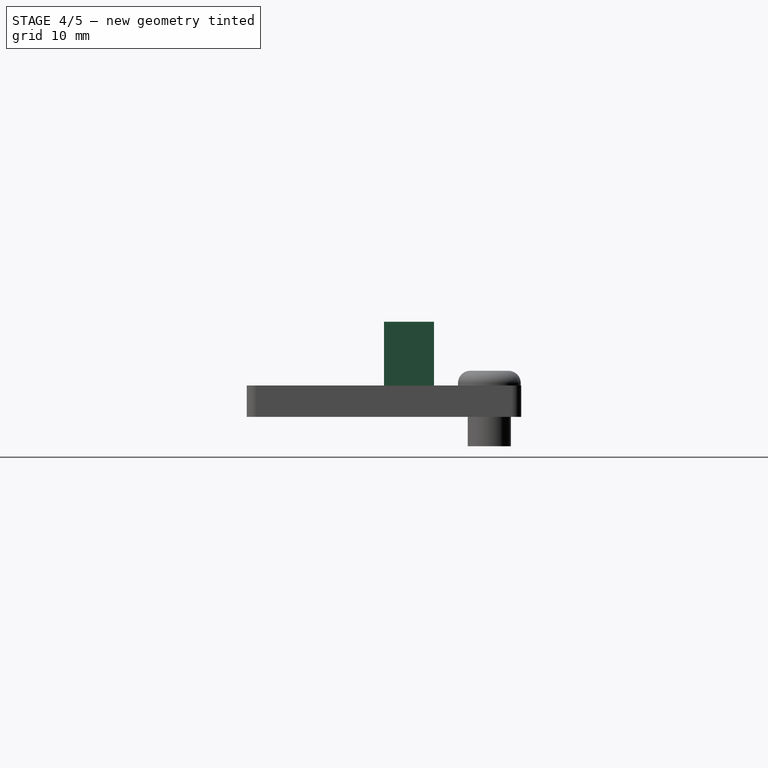
[diagram: stage 4 of 5 — right view after this stage's code; geometry added in this stage tinted green]
FEATURE [Sketcher::SketchObject] Sketch008
  FullyConstrained = true
  MapMode = 5
  Support = -> [XY_Plane007]
  sketch-geometry (8):
    g0: LineSegment StartX=-5 StartY=0 StartZ=0 EndX=-3.05 EndY=0 EndZ=0
    g1: LineSegment StartX=3.05 StartY=0 StartZ=0 EndX=5 EndY=0 EndZ=0
    g2: LineSegment StartX=-5 StartY=0 StartZ=0 EndX=-5 EndY=5.1 EndZ=0
    g3: LineSegment StartX=-5 StartY=5.1 StartZ=0 EndX=5 EndY=5.1 EndZ=0
    g4: LineSegment StartX=5 StartY=5.1 StartZ=0 EndX=5 EndY=0 EndZ=0
    g5: LineSegment StartX=3.05 StartY=0 StartZ=0 EndX=3.05 EndY=1 EndZ=0
    g6: LineSegment StartX=3.05 StartY=1 StartZ=0 EndX=-3.05 EndY=1 EndZ=0
    g7: LineSegment StartX=-3.05 StartY=1 StartZ=0 EndX=-3.05 EndY=0 EndZ=0
  constraints (23):
    c: PointOnObject(g0,g-1)
    c: PointOnObject(g1,g-1)
    c: PointOnObject(g0,g-1)
    c: Coincident(g2,g0)
    c: Vertical(g2)
    c: Coincident(g3,g2)
    c: Horizontal(g3)
    c: Coincident(g4,g3)
    c: Coincident(g4,g1)
    c: Vertical(g4)
    c: Coincident(g5,g1)
    c: Vertical(g5)
    c: Coincident(g6,g5)
    c: Horizontal(g6)
    c: Coincident(g7,g6)
    c: Coincident(g7,g0)
    c: Vertical(g7)
    c: Equal(g0,g1)
    c: Symmetric(g0,g1,g-1)
    c: Distance(g4) = 5.1
    c: Distance(g6) = 6.1
    c: Distance(g3) = 10
    c: Distance(g7) = 1
FEATURE [PartDesign::Pad] Pad005
  Direction = (1,1,1)
  Length = 8.1
  Length2 = 100
  Profile = -> Sketch008
  Type = 0
FEATURE [PartDesign::Body] Body005  label="GroveHeader1"
  Group = -> [Sketch008,Pad005,Sketch009,Pocket003,Sketch010,Pocket004,Sketch011,Pocket005,Sketch012,Pad006]
  Origin = -> Origin007
  Placement = pos=(22,0,-6) rot=(0.57735,0.57735,0.57735;2.0944rad)
  Tip = -> Pad006
FEATURE [PartDesign::ShapeBinder] CopyPad001
  Placement = pos=(0,0,0.8) rot=(0,0,1;0rad)
  TraceSupport = false
FEATURE [Sketcher::SketchObject] Sketch013
  FullyConstrained = true
  MapMode = 5
  Placement = pos=(0,0,0.8) rot=(0,0,1;0rad)
  Support = -> [CopyPad001]
  sketch-geometry (1):
    g0: Circle CenterX=-20 CenterY=0 CenterZ=0 NormalX=0 NormalY=0 NormalZ=1 AngleXU=0 Radius=5
  constraints (3):
    c: PointOnObject(g0,g-1)
    c: Diameter(g0) = 10
    c: DistanceX(g0,g-1) = 20
FEATURE [PartDesign::Pad] Pad007
  Direction = (1,1,1)
  Length = 0.1
  Length2 = 100
  Placement = pos=(0,0,0.8) rot=(0,0,1;0rad)
  Profile = -> Sketch013
  Type = 0
FEATURE [PartDesign::Body] Body006  label="Button1"
  Group = -> [CopyPad001,Sketch013,Pad007]
  Origin = -> Origin008
  Tip = -> Pad007
FEATURE [PartDesign::ShapeBinder] CopyPad002
  Placement = pos=(0,0,0.8) rot=(0,0,1;0rad)
  TraceSupport = false
FEATURE [Sketcher::SketchObject] Sketch014
  FullyConstrained = true
  MapMode = 5
  Placement = pos=(0,0,0.8) rot=(0,0,1;0rad)
  Support = -> [CopyPad002]
  sketch-geometry (1):
    g0: Circle CenterX=20 CenterY=0 CenterZ=0 NormalX=0 NormalY=0 NormalZ=1 AngleXU=0 Radius=5
  constraints (3):
    c: PointOnObject(g0,g-1)
    c: DistanceX(g-1,g0) = 20
    c: Diameter(g0) = 10
FEATURE [PartDesign::Pad] Pad008
  Direction = (1,1,1)
  Length = 0.1
  Length2 = 100
  Placement = pos=(0,0,0.8) rot=(0,0,1;0rad)
  Profile = -> Sketch014
  Type = 0
FEATURE [PartDesign::Body] Body007  label="Button2"
  Group = -> [CopyPad002,Sketch014,Pad008]
  Origin = -> Origin009
  Tip = -> Pad008
FEATURE [PartDesign::ShapeBinder] CopyPad004
  Placement = pos=(0,0,0.8) rot=(0,0,1;0rad)
  TraceSupport = false
FEATURE [Sketcher::SketchObject] Sketch015
  FullyConstrained = true
  MapMode = 5
  Placement = pos=(0,0,0.8) rot=(0,0,1;0rad)
  Support = -> [CopyPad004]
  sketch-geometry (18):
    g0: LineSegment StartX=-9.5 StartY=0 StartZ=0 EndX=-12.5 EndY=3 EndZ=0
    g1: LineSegment StartX=-12.5 StartY=3 StartZ=0 EndX=-9.5 EndY=6 EndZ=0
    g2: LineSegment StartX=-9.5 StartY=6 StartZ=0 EndX=12.5 EndY=6 EndZ=0
    g3: LineSegment StartX=12.5 StartY=6 StartZ=0 EndX=9.5 EndY=3 EndZ=0
    g4: LineSegment StartX=9.5 StartY=3 StartZ=0 EndX=12.5 EndY=0 EndZ=0
    g5: LineSegment StartX=-9.5 StartY=0 StartZ=0 EndX=-12.5 EndY=-3 EndZ=0
    g6: LineSegment StartX=-12.5 StartY=-3 StartZ=0 EndX=-9.5 EndY=-6 EndZ=0
    g7: LineSegment StartX=-9.5 StartY=-6 StartZ=0 EndX=12.5 EndY=-6 EndZ=0
    g8: LineSegment StartX=12.5 StartY=-6 StartZ=0 EndX=9.5 EndY=-3 EndZ=0
    g9: LineSegment StartX=9.5 StartY=-3 StartZ=0 EndX=12.5 EndY=0 EndZ=0
    g10: LineSegment StartX=-12.5 StartY=3 StartZ=0 EndX=-12.5 EndY=-3 EndZ=0
    g11: LineSegment StartX=-9.5 StartY=6 StartZ=0 EndX=-9.5 EndY=-6 EndZ=0
    g12: LineSegment StartX=0 StartY=0 StartZ=0 EndX=-12.5 EndY=0 EndZ=0
    g13: LineSegment StartX=0 StartY=0 StartZ=0 EndX=9.5 EndY=0 EndZ=0
    g14: LineSegment StartX=12.5 StartY=6 StartZ=0 EndX=12.5 EndY=-6 EndZ=0
    g15: LineSegment StartX=9.5 StartY=3 StartZ=0 EndX=9.5 EndY=-3 EndZ=0
    g16: LineSegment StartX=-12.5 StartY=3 StartZ=0 EndX=9.5 EndY=3 EndZ=0
    g17: LineSegment StartX=-12.5 StartY=-3 StartZ=0 EndX=9.5 EndY=-3 EndZ=0
  constraints (44):
    c: PointOnObject(g0,g-1)
    c: Coincident(g1,g0)
    c: Coincident(g2,g1)
    c: Horizontal(g2)
    c: Coincident(g3,g2)
    c: Coincident(g4,g3)
    c: Coincident(g5,g0)
    c: Coincident(g6,g5)
    c: Coincident(g7,g6)
    c: Coincident(g8,g7)
    c: Coincident(g9,g8)
    c: Coincident(g9,g4)
    c: Coincident(g10,g0)
    c: Coincident(g10,g5)
    c: Vertical(g10)
    c: Coincident(g11,g1)
    c: Coincident(g11,g6)
    c: Vertical(g11)
    c: Symmetric(g1,g6,g0)
    c: Coincident(g12,g-1)
    c: PointOnObject(g12,g-1)
    c: Symmetric(g5,g0,g12)
    c: Coincident(g13,g-1)
    c: PointOnObject(g13,g-1)
    c: Coincident(g14,g2)
    c: Coincident(g14,g7)
    c: Symmetric(g2,g7,g4)
    c: Vertical(g14)
    c: Coincident(g15,g3)
    c: Coincident(g15,g8)
    c: Symmetric(g3,g8,g13)
    c: Vertical(g15)
    c: DistanceX(g0,g1) = 3
    c: DistanceX(g3,g2) = 3
    c: DistanceY(g8,g3) = 6
    c: Horizontal(g7)
    c: Coincident(g16,g0)
    c: Coincident(g16,g3)
    c: Coincident(g17,g5)
    c: Coincident(g17,g8)
    c: Horizontal(g16)
    c: DistanceY(g7,g2) = 12
    c: DistanceX(g0,g2) = 25
    c: DistanceX(g0,g-1) = 12.5
FEATURE [PartDesign::Pad] Pad009
  Direction = (1,1,1)
  Length = 0.1
  Length2 = 100
  Placement = pos=(0,0,0.8) rot=(0,0,1;0rad)
  Profile = -> Sketch015
  Type = 0
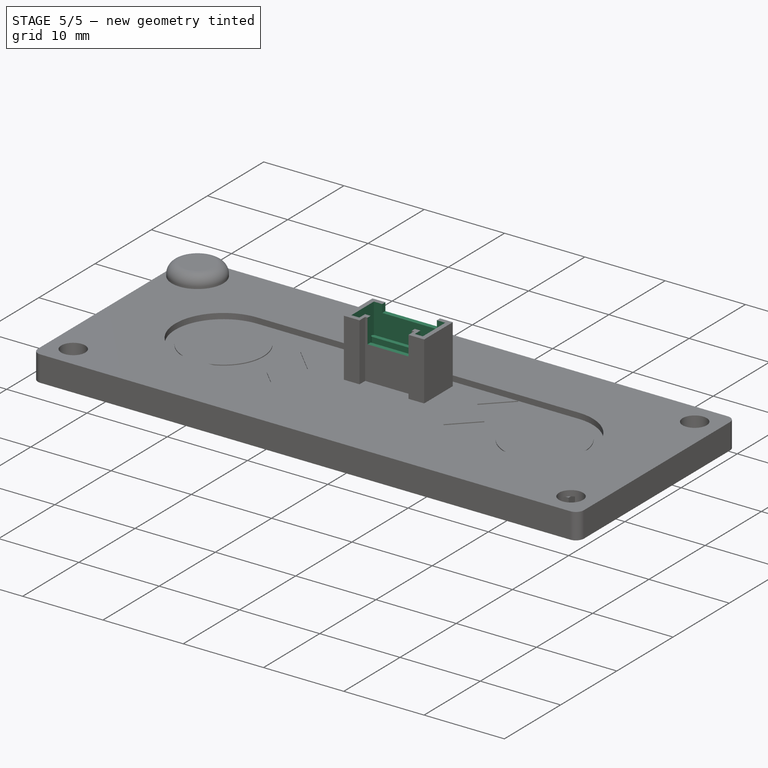
[diagram: stage 5 of 5 — iso view after this stage's code; geometry added in this stage tinted green]
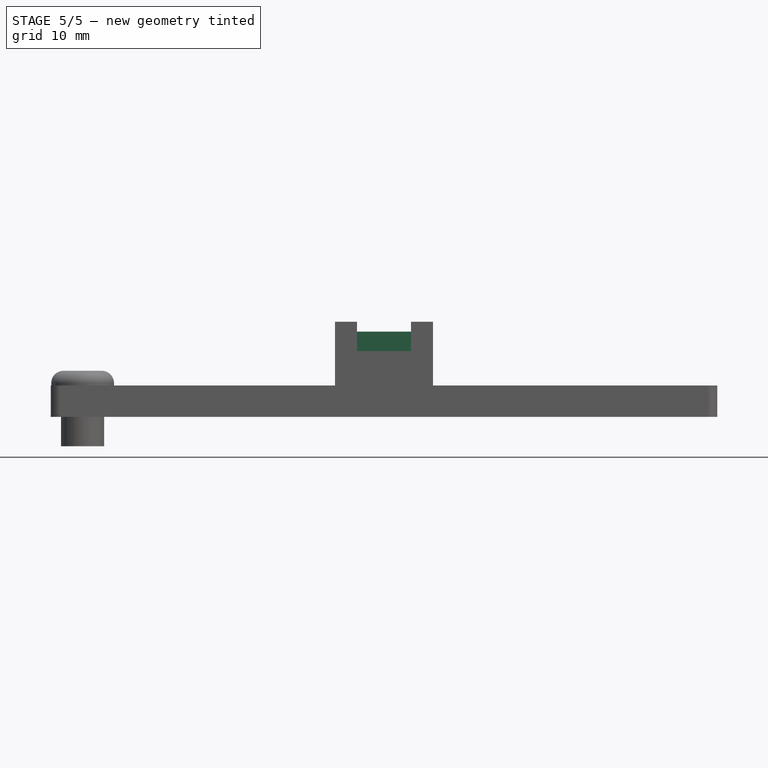
[diagram: stage 5 of 5 — front view after this stage's code; geometry added in this stage tinted green]
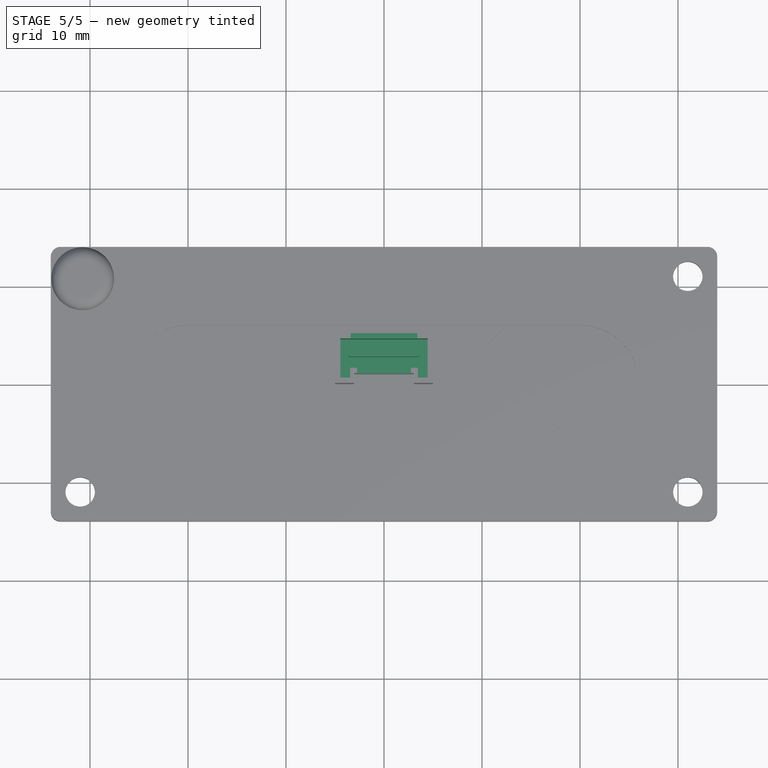
[diagram: stage 5 of 5 — top view after this stage's code; geometry added in this stage tinted green]
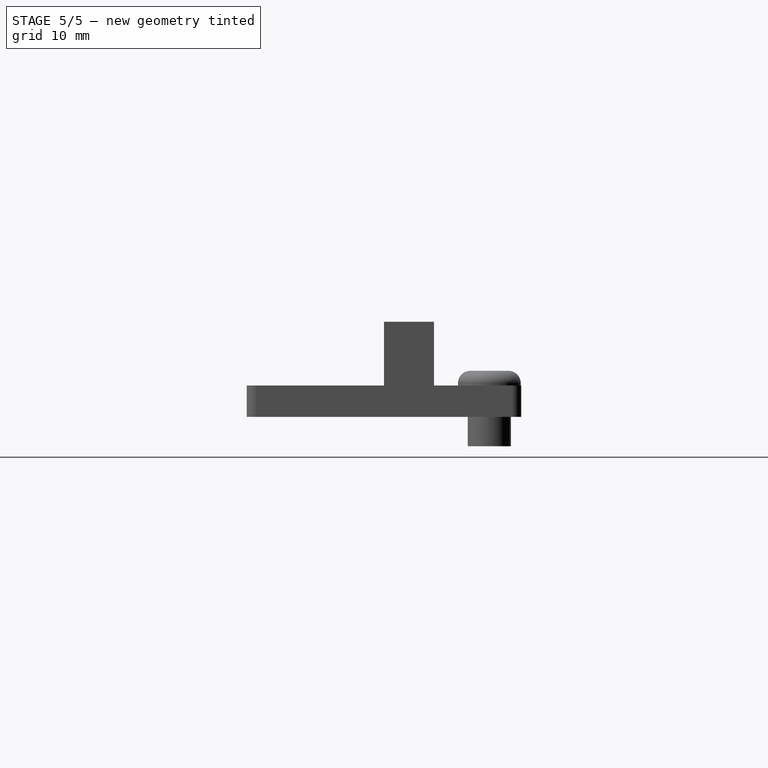
[diagram: stage 5 of 5 — right view after this stage's code; geometry added in this stage tinted green]
FEATURE [Sketcher::SketchObject] Sketch009
  FullyConstrained = true
  MapMode = 5
  Placement = pos=(0,0,8.1) rot=(0,0,1;0rad)
  Support = -> [Pad005]
  sketch-geometry (10):
    g0: LineSegment StartX=-4.45 StartY=0.55 StartZ=0 EndX=-3.45 EndY=0.55 EndZ=0
    g1: LineSegment StartX=-3.45 StartY=0.55 StartZ=0 EndX=-3.45 EndY=1.55 EndZ=0
    g2: LineSegment StartX=-3.45 StartY=1.55 StartZ=0 EndX=3.45 EndY=1.55 EndZ=0
    g3: LineSegment StartX=3.45 StartY=1.55 StartZ=0 EndX=3.45 EndY=0.55 EndZ=0
    g4: LineSegment StartX=3.45 StartY=0.55 StartZ=0 EndX=4.45 EndY=0.55 EndZ=0
    g5: LineSegment StartX=4.45 StartY=0.55 StartZ=0 EndX=4.45 EndY=4.55 EndZ=0
    g6: LineSegment StartX=4.45 StartY=4.55 StartZ=0 EndX=-4.45 EndY=4.55 EndZ=0
    g7: LineSegment StartX=-4.45 StartY=4.55 StartZ=0 EndX=-4.45 EndY=0.55 EndZ=0
    g8: LineSegment StartX=-3.45 StartY=0.55 StartZ=0 EndX=3.45 EndY=0.55 EndZ=0
    g9: LineSegment StartX=0 StartY=0 StartZ=0 EndX=0 EndY=0.55 EndZ=0
  constraints (28):
    c: Horizontal(g0)
    c: Coincident(g1,g0)
    c: Coincident(g2,g1)
    c: Horizontal(g2)
    c: Coincident(g3,g2)
    c: Vertical(g3)
    c: Coincident(g4,g3)
    c: Horizontal(g4)
    c: Coincident(g5,g4)
    c: Vertical(g5)
    c: Coincident(g6,g5)
    c: Horizontal(g6)
    c: Coincident(g7,g6)
    c: Coincident(g7,g0)
    c: Vertical(g7)
    c: Vertical(g1)
    c: Coincident(g8,g0)
    c: Coincident(g8,g3)
    c: Horizontal(g8)
    c: Equal(g0,g4)
    c: Coincident(g9,g-1)
    c: PointOnObject(g9,g-2)
    c: Symmetric(g0,g3,g9)
    c: Distance(g0) = 1
    c: Distance(g1) = 1
    c: Distance(g9) = 0.55
    c: Distance(g6) = 8.9
    c: DistanceY(g2,g5) = 3
FEATURE [PartDesign::Pocket] Pocket003
  BaseFeature = -> Pad005
  Length = 7
  Length2 = 100
  Profile = -> Sketch009
  Type = 0
FEATURE [Sketcher::SketchObject] Sketch010
  FullyConstrained = true
  MapMode = 5
  Placement = pos=(0,0,8.1) rot=(0,0,1;0rad)
  Support = -> [Pocket003]
  sketch-geometry (5):
    g0: LineSegment StartX=0 StartY=0 StartZ=0 EndX=0 EndY=3 EndZ=0
    g1: LineSegment StartX=-3.4 StartY=8 StartZ=0 EndX=3.4 EndY=8 EndZ=0
    g2: LineSegment StartX=3.4 StartY=8 StartZ=0 EndX=3.4 EndY=3 EndZ=0
    g3: LineSegment StartX=3.4 StartY=3 StartZ=0 EndX=-3.4 EndY=3 EndZ=0
    g4: LineSegment StartX=-3.4 StartY=3 StartZ=0 EndX=-3.4 EndY=8 EndZ=0
  constraints (14):
    c: Coincident(g0,g-1)
    c: PointOnObject(g0,g-2)
    c: Coincident(g1,g2)
    c: Coincident(g2,g3)
    c: Coincident(g3,g4)
    c: Coincident(g4,g1)
    c: Horizontal(g1)
    c: Horizontal(g3)
    c: Vertical(g2)
    c: Vertical(g4)
    c: Symmetric(g3,g2,g0)
    c: Distance(g0) = 3
    c: Distance(g2) = 5
    c: Distance(g1) = 6.8
FEATURE [PartDesign::Pocket] Pocket004
  BaseFeature = -> Pocket003
  Length = 1
  Length2 = 100
  Profile = -> Sketch010
  Type = 0
FEATURE [Sketcher::SketchObject] Sketch011
  FullyConstrained = true
  MapMode = 5
  Placement = pos=(0,0,8.1) rot=(0,0,1;0rad)
  Support = -> [Pocket004]
  sketch-geometry (4):
    g0: LineSegment StartX=-2.75 StartY=3 StartZ=0 EndX=2.75 EndY=3 EndZ=0
    g1: LineSegment StartX=2.75 StartY=3 StartZ=0 EndX=2.75 EndY=0 EndZ=0
    g2: LineSegment StartX=2.75 StartY=0 StartZ=0 EndX=-2.75 EndY=0 EndZ=0
    g3: LineSegment StartX=-2.75 StartY=0 StartZ=0 EndX=-2.75 EndY=3 EndZ=0
  constraints (11):
    c: Coincident(g0,g1)
    c: Coincident(g1,g2)
    c: Coincident(g2,g3)
    c: Coincident(g3,g0)
    c: Horizontal(g0)
    c: Horizontal(g2)
    c: Vertical(g1)
    c: Vertical(g3)
    c: Symmetric(g2,g1,g-1)
    c: Distance(g1) = 3
    c: Distance(g0) = 5.5
FEATURE [PartDesign::Pocket] Pocket005
  BaseFeature = -> Pocket004
  Length = 3
  Length2 = 100
  Profile = -> Sketch011
  Type = 0
FEATURE [Sketcher::SketchObject] Sketch012
  FullyConstrained = true
  MapMode = 5
  Placement = pos=(0,0,1.1) rot=(0,0,1;0rad)
  Support = -> [Pocket005]
  sketch-geometry (5):
    g0: ArcOfCircle CenterX=-3.4 CenterY=3 CenterZ=0 NormalX=0 NormalY=0 NormalZ=1 AngleXU=0 Radius=0.25 StartAngle=1.5708 EndAngle=4.71239
    g1: ArcOfCircle CenterX=3.4 CenterY=3 CenterZ=0 NormalX=0 NormalY=0 NormalZ=1 AngleXU=0 Radius=0.25 StartAngle=4.71239 EndAngle=7.85398
    g2: LineSegment StartX=-3.4 StartY=2.75 StartZ=0 EndX=3.4 EndY=2.75 EndZ=0
    g3: LineSegment StartX=-3.4 StartY=3.25 StartZ=0 EndX=3.4 EndY=3.25 EndZ=0
    g4: LineSegment StartX=0 StartY=0 StartZ=0 EndX=0 EndY=2.75 EndZ=0
  constraints (12):
    c: Tangent(g0,g3) = 1.5708
    c: Tangent(g0,g2) = -1.5708
    c: Tangent(g2,g1) = -1.5708
    c: Tangent(g3,g1) = 1.5708
    c: Horizontal(g2)
    c: Equal(g0,g1)
    c: Coincident(g4,g-1)
    c: PointOnObject(g4,g-2)
    c: Symmetric(g0,g1,g4)
    c: DistanceY(g-1,g1) = 3
    c: DistanceY(g1,g1) = 0.5
    c: DistanceX(g0,g1) = 6.8
FEATURE [PartDesign::Pad] Pad006
  BaseFeature = -> Pocket005
  Direction = (1,1,1)
  Length = 4
  Length2 = 100
  Profile = -> Sketch012
  Type = 0
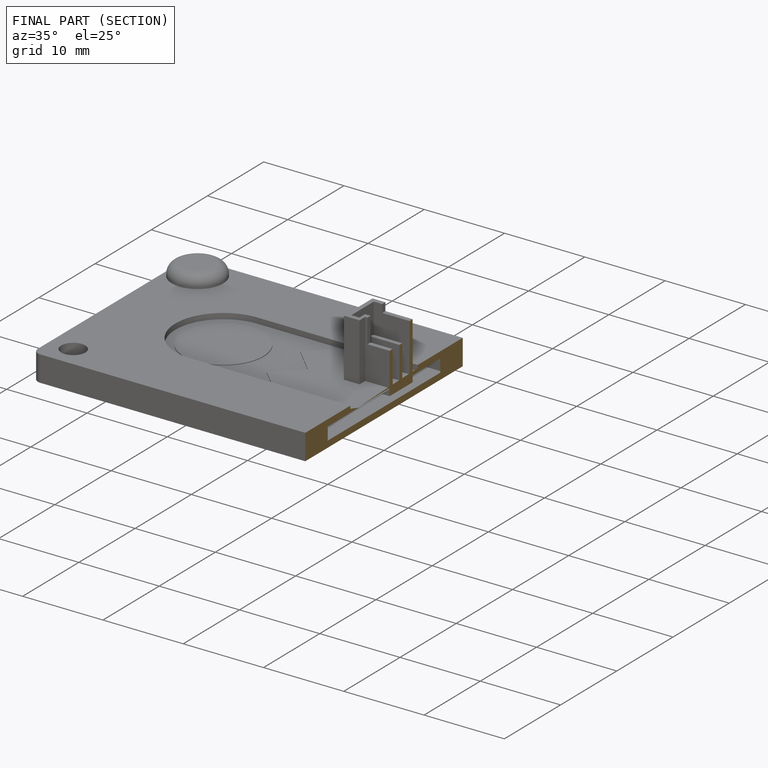
[diagram: finished part — half-section view (interior)]
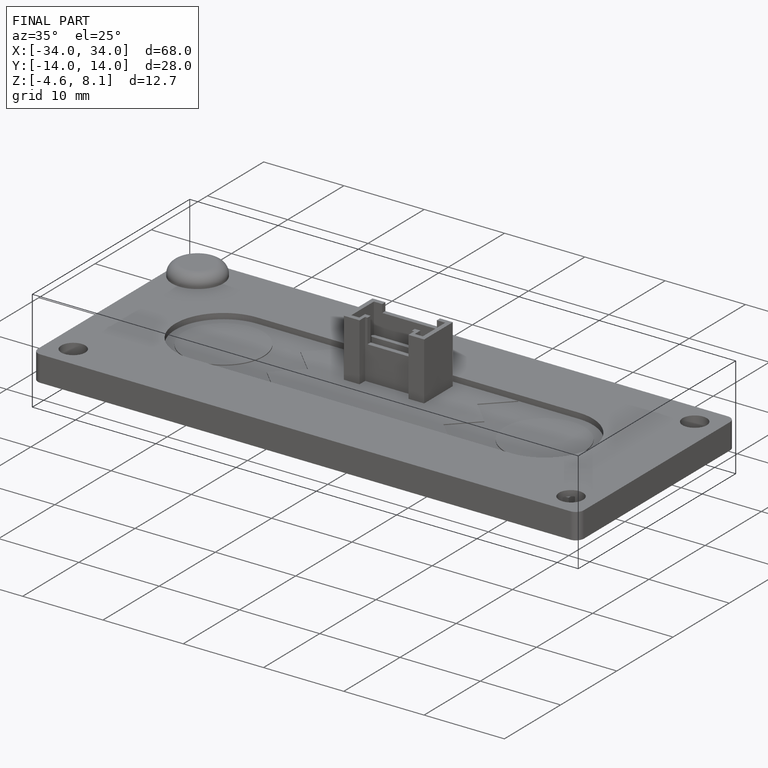
[diagram: finished part — iso view with bounding-box wireframe]
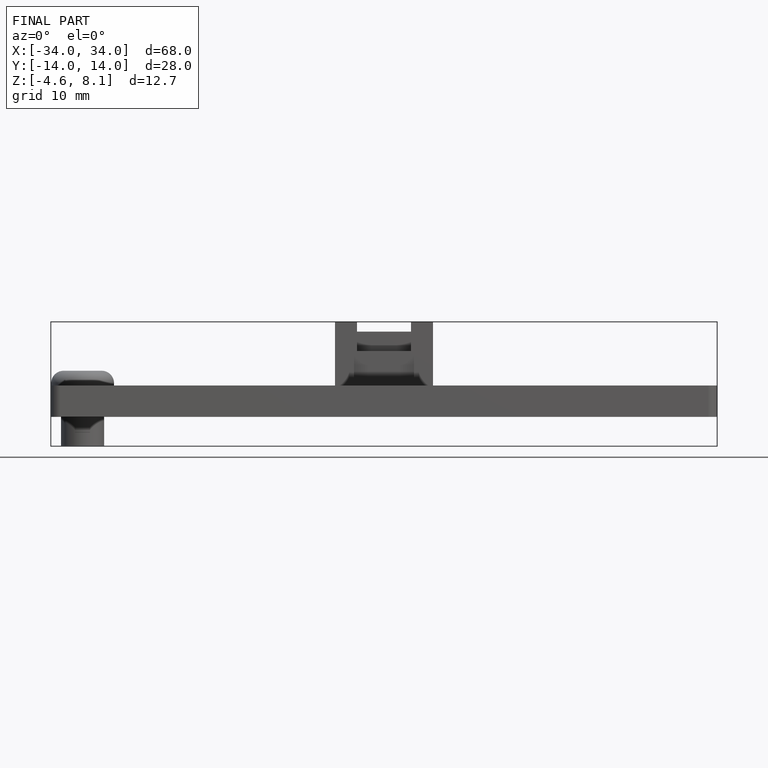
[diagram: finished part — front view with bounding-box wireframe]
